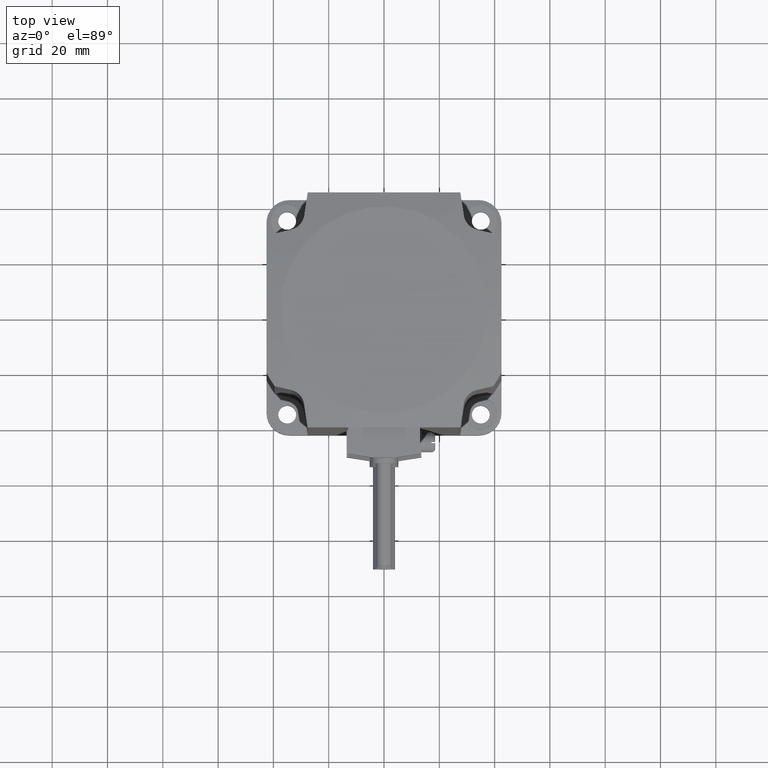
[diagram: clean part render]
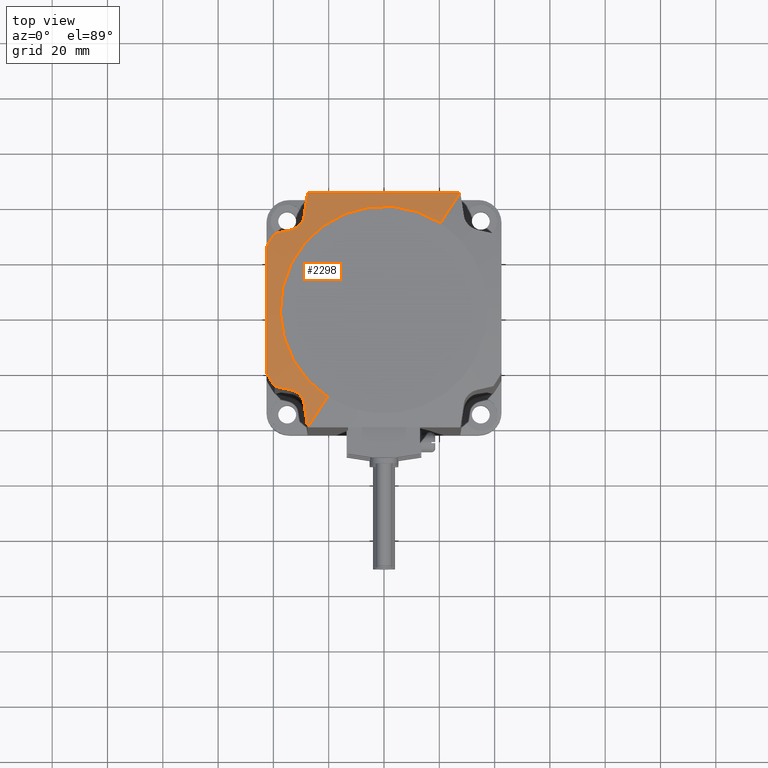
[diagram: same view with one face highlighted and labeled with its STEP entity id]
A machine part, top view. The second image highlights one B-rep face of the part: STEP entity #2298.
In plain terms, the highlighted spherical surface has radius 200 mm.
Its self-contained STEP definition (entity closure, byte-faithful):
#38 = DIRECTION ( 'NONE',  ( 0.5446414957570451243, 0.8386689699157402478, 0.0000000000000000000 ) ) ;
#41 = ORIENTED_EDGE ( 'NONE', *, *, #852, .F. ) ;
#88 = EDGE_CURVE ( 'NONE', #3593, #1196, #4919, .T. ) ;
#94 = AXIS2_PLACEMENT_3D ( 'NONE', #4737, #3061, #4338 ) ;
#100 = CIRCLE ( 'NONE', #2882, 48.20000000000000995 ) ;
#121 = CARTESIAN_POINT ( 'NONE',  ( 0.0000000000000000000, 0.0000000000000000000, 171.6521025501577071 ) ) ;
#177 = CARTESIAN_POINT ( 'NONE',  ( -30.24056762302149437, 31.01458720986288853, 172.7999902181730363 ) ) ;
#221 = CARTESIAN_POINT ( 'NONE',  ( -33.30042872042126589, -29.02947558148741791, 172.6072456029619104 ) ) ;
#222 = DIRECTION ( 'NONE',  ( -0.8386689699157401368, 0.5446414957570452353, 5.133999465932588872E-18 ) ) ;
#253 = DIRECTION ( 'NONE',  ( 0.8386689699157402478, -0.5446414957570451243, -5.133999465932588102E-18 ) ) ;
#276 = CARTESIAN_POINT ( 'NONE',  ( -20.42405609088921636, -31.45008637184029610, 174.0000000000000000 ) ) ;
#341 = EDGE_CURVE ( 'NONE', #2640, #4765, #100, .T. ) ;
#382 = ORIENTED_EDGE ( 'NONE', *, *, #3274, .F. ) ;
#450 = ORIENTED_EDGE ( 'NONE', *, *, #4017, .F. ) ;
#453 = AXIS2_PLACEMENT_3D ( 'NONE', #3295, #4099, #2851 ) ;
#574 = CARTESIAN_POINT ( 'NONE',  ( -28.86919802653621758, 34.07627538618240237, 172.4967571973375016 ) ) ;
#594 = EDGE_CURVE ( 'NONE', #2522, #2640, #768, .T. ) ;
#623 = AXIS2_PLACEMENT_3D ( 'NONE', #1310, #1730, #3033 ) ;
#661 = VERTEX_POINT ( 'NONE', #3546 ) ;
#742 = DIRECTION ( 'NONE',  ( -0.1489878409383235125, 0.9888390279780306935, 2.308819581091663183E-14 ) ) ;
#763 = AXIS2_PLACEMENT_3D ( 'NONE', #3190, #1163, #1188 ) ;
#768 = CIRCLE ( 'NONE', #1850, 196.7713875655438756 ) ;
#770 = DIRECTION ( 'NONE',  ( -0.8386689699157402478, 0.5446414957570451243, 5.133999465932588102E-18 ) ) ;
#852 = EDGE_CURVE ( 'NONE', #1340, #1148, #5157, .T. ) ;
#871 = CARTESIAN_POINT ( 'NONE',  ( -28.86919802653623179, -34.07627538618240237, 172.4967571973375016 ) ) ;
#902 = ORIENTED_EDGE ( 'NONE', *, *, #1976, .F. ) ;
#915 = CARTESIAN_POINT ( 'NONE',  ( -29.69858811958233247, 31.77042984928221614, 172.7616510106243197 ) ) ;
#955 = DIRECTION ( 'NONE',  ( 0.9742402133816068233, 0.2255127637854701106, 3.196657502756436491E-14 ) ) ;
#987 = ORIENTED_EDGE ( 'NONE', *, *, #1544, .F. ) ;
#1031 = CARTESIAN_POINT ( 'NONE',  ( -42.50000000000014211, -22.73741410099197324, 171.6521025501577071 ) ) ;
#1071 = CARTESIAN_POINT ( 'NONE',  ( -1.143430478901920092E-14, -1.739552239539048247E-14, -22.45292056877140396 ) ) ;
#1080 = CARTESIAN_POINT ( 'NONE',  ( -30.88230511692524516, -30.35458678812424438, 172.8032640715452999 ) ) ;
#1088 = DIRECTION ( 'NONE',  ( -0.2255127637854665024, -0.9742402133816076004, 0.0000000000000000000 ) ) ;
#1148 = VERTEX_POINT ( 'NONE', #2279 ) ;
#1161 = EDGE_CURVE ( 'NONE', #2610, #2207, #4827, .T. ) ;
#1163 = DIRECTION ( 'NONE',  ( 4.305726043641643178E-18, -2.796189148341395697E-18, 1.000000000000000000 ) ) ;
#1188 = DIRECTION ( 'NONE',  ( 1.000000000000000000, 0.0000000000000000000, 0.0000000000000000000 ) ) ;
#1196 = VERTEX_POINT ( 'NONE', #1857 ) ;
#1245 = DIRECTION ( 'NONE',  ( -1.000000000000000000, 0.0000000000000000000, 0.0000000000000000000 ) ) ;
#1290 = CARTESIAN_POINT ( 'NONE',  ( -30.04208798208010123, -31.26452495140711463, 172.7907664228655449 ) ) ;
#1310 = CARTESIAN_POINT ( 'NONE',  ( -1.143430478901920092E-14, 42.50000000000002132, -22.45292056877140396 ) ) ;
#1340 = VERTEX_POINT ( 'NONE', #2487 ) ;
#1397 = AXIS2_PLACEMENT_3D ( 'NONE', #4167, #2625, #1748 ) ;
#1417 = VERTEX_POINT ( 'NONE', #4248 ) ;
#1424 = CARTESIAN_POINT ( 'NONE',  ( -33.60182086453012573, -28.95971067703403889, 172.5656754473278056 ) ) ;
#1544 = EDGE_CURVE ( 'NONE', #2207, #4555, #3380, .T. ) ;
#1556 = SPHERICAL_SURFACE ( 'NONE', #5100, 200.0000000000000000 ) ;
#1577 = CARTESIAN_POINT ( 'NONE',  ( -8.071407205457717282, -34.86937655385047208, -22.45292056877140396 ) ) ;
#1684 = CARTESIAN_POINT ( 'NONE',  ( -29.54121185625407620, -32.04408928024617609, 172.7408026951315492 ) ) ;
#1690 = AXIS2_PLACEMENT_3D ( 'NONE', #3550, #4377, #742 ) ;
#1730 = DIRECTION ( 'NONE',  ( -0.0000000000000000000, 1.000000000000000000, -0.0000000000000000000 ) ) ;
#1742 = CARTESIAN_POINT ( 'NONE',  ( -1.143430478901920092E-14, -1.739552239539048247E-14, -22.45292056877140396 ) ) ;
#1748 = DIRECTION ( 'NONE',  ( 4.615698672296983376E-16, 1.000000000000000000, 4.438171800285561105E-15 ) ) ;
#1753 = CARTESIAN_POINT ( 'NONE',  ( -30.04521705179144320, 31.26031856699229650, 172.7909595438525514 ) ) ;
#1850 = AXIS2_PLACEMENT_3D ( 'NONE', #1577, #1088, #2758 ) ;
#1857 = CARTESIAN_POINT ( 'NONE',  ( -28.86919802653623179, -34.07627538618240237, 172.4967571973375016 ) ) ;
#1900 = ORIENTED_EDGE ( 'NONE', *, *, #3613, .F. ) ;
#1954 = AXIS2_PLACEMENT_3D ( 'NONE', #1742, #222, #3355 ) ;
#1976 = EDGE_CURVE ( 'NONE', #1196, #2522, #3795, .T. ) ;
#2058 = ORIENTED_EDGE ( 'NONE', *, *, #88, .F. ) ;
#2176 = CARTESIAN_POINT ( 'NONE',  ( -28.86919802653621758, 34.07627538618240237, 172.4967571973375016 ) ) ;
#2207 = VERTEX_POINT ( 'NONE', #4579 ) ;
#2218 = CARTESIAN_POINT ( 'NONE',  ( -8.071407205457875378, 34.86937655385052182, -22.45292056877140396 ) ) ;
#2279 = CARTESIAN_POINT ( 'NONE',  ( -39.52320953699879169, 27.58905413192862710, 171.6521025501577071 ) ) ;
#2298 = ADVANCED_FACE ( 'NONE', ( #3969 ), #1556, .T. ) ;
#2378 = CIRCLE ( 'NONE', #3570, 196.7713875655438471 ) ;
#2423 = CARTESIAN_POINT ( 'NONE',  ( -1.143430478901920092E-14, -1.739552239539048247E-14, -22.45292056877140396 ) ) ;
#2469 = CARTESIAN_POINT ( 'NONE',  ( -27.60000000000001563, -42.50000000000002132, 171.0205659868804560 ) ) ;
#2470 = CIRCLE ( 'NONE', #623, 195.4322133119307523 ) ;
#2477 = CARTESIAN_POINT ( 'NONE',  ( -28.96115440581031564, -33.46595674457324776, 172.5898205939516004 ) ) ;
#2487 = CARTESIAN_POINT ( 'NONE',  ( -42.50000000000012079, 22.73741410099199811, 171.6521025501577355 ) ) ;
#2496 = ORIENTED_EDGE ( 'NONE', *, *, #4373, .F. ) ;
#2522 = VERTEX_POINT ( 'NONE', #4303 ) ;
#2610 = VERTEX_POINT ( 'NONE', #3976 ) ;
#2625 = DIRECTION ( 'NONE',  ( -1.000000000000000000, 4.577627345673731666E-16, -0.0000000000000000000 ) ) ;
#2640 = VERTEX_POINT ( 'NONE', #3760 ) ;
#2671 = CARTESIAN_POINT ( 'NONE',  ( -31.61764680952328632, -29.79476306994078527, 172.7718004775844634 ) ) ;
#2721 = CARTESIAN_POINT ( 'NONE',  ( -33.00596788524397596, -29.12127026234156091, 172.6436050303224476 ) ) ;
#2757 = EDGE_CURVE ( 'NONE', #1148, #661, #2378, .T. ) ;
#2758 = DIRECTION ( 'NONE',  ( -0.9742402133816077114, 0.2255127637854665024, 1.385512115645894822E-13 ) ) ;
#2761 = EDGE_CURVE ( 'NONE', #3593, #4555, #4259, .T. ) ;
#2851 = DIRECTION ( 'NONE',  ( 0.1489878409383235403, 0.9888390279780306935, 2.486556454331189295E-14 ) ) ;
#2882 = AXIS2_PLACEMENT_3D ( 'NONE', #121, #3339, #1245 ) ;
#2935 = CARTESIAN_POINT ( 'NONE',  ( -30.65256366317698422, -30.56880982352202736, 172.8060455913228850 ) ) ;
#2948 = CARTESIAN_POINT ( 'NONE',  ( -28.91517912084283282, 33.77109678695461525, 172.5432918352819627 ) ) ;
#3016 = ORIENTED_EDGE ( 'NONE', *, *, #594, .F. ) ;
#3033 = DIRECTION ( 'NONE',  ( 5.329070518200752183E-15, 0.0000000000000000000, -1.000000000000000000 ) ) ;
#3041 = VERTEX_POINT ( 'NONE', #574 ) ;
#3061 = DIRECTION ( 'NONE',  ( -0.0000000000000000000, -0.0000000000000000000, -1.000000000000000000 ) ) ;
#3112 = CARTESIAN_POINT ( 'NONE',  ( -32.43089394695859085, -29.34886546865727297, 172.7059321950111155 ) ) ;
#3138 = ORIENTED_EDGE ( 'NONE', *, *, #2761, .T. ) ;
#3190 = CARTESIAN_POINT ( 'NONE',  ( 7.491963315936459499E-16, -4.865369118114028004E-16, 174.0000000000000000 ) ) ;
#3274 = EDGE_CURVE ( 'NONE', #1417, #2610, #2470, .T. ) ;
#3295 = CARTESIAN_POINT ( 'NONE',  ( -33.24866455386491992, 5.009558285833494828, -22.45292056877140396 ) ) ;
#3303 = CARTESIAN_POINT ( 'NONE',  ( -29.69660942951328408, -31.77374615490858289, 172.7614111912786257 ) ) ;
#3317 = CARTESIAN_POINT ( 'NONE',  ( -29.54538283461942427, 32.03659902708749030, 172.7413978321795867 ) ) ;
#3339 = DIRECTION ( 'NONE',  ( -0.0000000000000000000, -0.0000000000000000000, -1.000000000000000000 ) ) ;
#3347 = CARTESIAN_POINT ( 'NONE',  ( -29.16508327599964545, 32.88128721322837578, 172.6581129662017418 ) ) ;
#3355 = DIRECTION ( 'NONE',  ( -0.5446414957570452353, -0.8386689699157400257, 0.0000000000000000000 ) ) ;
#3365 = CARTESIAN_POINT ( 'NONE',  ( -30.66095710256629658, 30.56058355264456949, 172.8060156242019048 ) ) ;
#3380 = CIRCLE ( 'NONE', #763, 37.50000000000000711 ) ;
#3392 = CARTESIAN_POINT ( 'NONE',  ( -32.99911735836808901, 29.09922178687214611, 172.6488046165583228 ) ) ;
#3546 = CARTESIAN_POINT ( 'NONE',  ( -33.60182086453011152, 28.95971067703403179, 172.5656754473278056 ) ) ;
#3550 = CARTESIAN_POINT ( 'NONE',  ( -33.24866455386491992, -5.009558285833530356, -22.45292056877140396 ) ) ;
#3570 = AXIS2_PLACEMENT_3D ( 'NONE', #2218, #3838, #955 ) ;
#3593 = VERTEX_POINT ( 'NONE', #2469 ) ;
#3613 = EDGE_CURVE ( 'NONE', #3041, #1417, #5111, .T. ) ;
#3679 = EDGE_LOOP ( 'NONE', ( #2058, #3138, #987, #4976, #382, #1900, #450, #5085, #41, #2496, #3828, #3016, #902 ) ) ;
#3715 = CARTESIAN_POINT ( 'NONE',  ( -33.60182086453011152, 28.95971067703403179, 172.5656754473278056 ) ) ;
#3760 = CARTESIAN_POINT ( 'NONE',  ( -39.52320953699876327, -27.58905413192866973, 171.6521025501577355 ) ) ;
#3773 = CARTESIAN_POINT ( 'NONE',  ( -31.62470081191837323, 29.79006354058095951, 172.7713783929729061 ) ) ;
#3795 = B_SPLINE_CURVE_WITH_KNOTS ( 'NONE', 3,
 ( #871, #2477, #4105, #1684, #3303, #1290, #4958, #2935, #1080, #3884, #2671, #3837, #3112, #2721, #221, #1424 ),
 .UNSPECIFIED., .F., .F.,
 ( 4, 2, 2, 2, 2, 2, 2, 4 ),
 ( 2.016974705103553704E-07, 0.001846706340402547554, 0.002769958661868567214, 0.003693210983334587090, 0.004616463304800606966, 0.005539715626266618169, 0.006462967947732630239, 0.007386220269198642309 ),
 .UNSPECIFIED. ) ;
#3828 = ORIENTED_EDGE ( 'NONE', *, *, #341, .F. ) ;
#3837 = CARTESIAN_POINT ( 'NONE',  ( -32.15002115996334453, -29.48525383952048884, 172.7318410014548249 ) ) ;
#3838 = DIRECTION ( 'NONE',  ( -0.2255127637854701106, 0.9742402133816068233, -0.0000000000000000000 ) ) ;
#3884 = CARTESIAN_POINT ( 'NONE',  ( -31.36406596055474338, -29.96857289429997095, 172.7861005151479219 ) ) ;
#3969 = FACE_OUTER_BOUND ( 'NONE', #3679, .T. ) ;
#3976 = CARTESIAN_POINT ( 'NONE',  ( 27.60000000000001563, 42.50000000000002132, 171.0205659868804560 ) ) ;
#4017 = EDGE_CURVE ( 'NONE', #661, #3041, #4907, .T. ) ;
#4099 = DIRECTION ( 'NONE',  ( -0.9888390279780308045, 0.1489878409383235403, -0.0000000000000000000 ) ) ;
#4105 = CARTESIAN_POINT ( 'NONE',  ( -29.14037456951507110, -32.88153486216071286, 172.6625044096330157 ) ) ;
#4167 = CARTESIAN_POINT ( 'NONE',  ( -42.50000000000013500, 2.059393823722932234E-15, -22.45292056877140396 ) ) ;
#4171 = CARTESIAN_POINT ( 'NONE',  ( -28.98355971834867262, 33.47106462328458321, 172.5848645843036024 ) ) ;
#4248 = CARTESIAN_POINT ( 'NONE',  ( -27.60000000000000142, 42.50000000000003553, 171.0205659868804560 ) ) ;
#4259 = CIRCLE ( 'NONE', #1954, 200.0000000000000284 ) ;
#4303 = CARTESIAN_POINT ( 'NONE',  ( -33.60182086453012573, -28.95971067703403889, 172.5656754473278056 ) ) ;
#4307 = DIRECTION ( 'NONE',  ( 0.5446414957570451243, 0.8386689699157401368, 0.0000000000000000000 ) ) ;
#4320 = AXIS2_PLACEMENT_3D ( 'NONE', #1071, #253, #4307 ) ;
#4338 = DIRECTION ( 'NONE',  ( -1.000000000000000000, 0.0000000000000000000, 0.0000000000000000000 ) ) ;
#4373 = EDGE_CURVE ( 'NONE', #4765, #1340, #5042, .T. ) ;
#4377 = DIRECTION ( 'NONE',  ( -0.9888390279780308045, -0.1489878409383235403, 0.0000000000000000000 ) ) ;
#4555 = VERTEX_POINT ( 'NONE', #276 ) ;
#4579 = CARTESIAN_POINT ( 'NONE',  ( 20.42405609088927321, 31.45008637184038847, 174.0000000000000000 ) ) ;
#4602 = CARTESIAN_POINT ( 'NONE',  ( -32.42941891449978442, 29.32404695545663031, 172.7106493622505639 ) ) ;
#4628 = CARTESIAN_POINT ( 'NONE',  ( -30.88637310953146908, 30.35103542557668632, 172.8031714663143248 ) ) ;
#4737 = CARTESIAN_POINT ( 'NONE',  ( 0.0000000000000000000, 0.0000000000000000000, 171.6521025501577355 ) ) ;
#4765 = VERTEX_POINT ( 'NONE', #1031 ) ;
#4827 = CIRCLE ( 'NONE', #4320, 200.0000000000000284 ) ;
#4907 = B_SPLINE_CURVE_WITH_KNOTS ( 'NONE', 3,
 ( #3715, #3392, #4602, #3773, #4946, #4628, #3365, #177, #1753, #915, #3317, #4995, #3347, #4171, #2948, #2176 ),
 .UNSPECIFIED., .F., .F.,
 ( 4, 2, 2, 2, 2, 2, 2, 4 ),
 ( 2.042416867789492952E-07, 0.001846673388247560468, 0.002769907961527962124, 0.003693142534808364647, 0.004616377108088766737, 0.005539611681369169260, 0.006462846254649570917, 0.007386080827929973440 ),
 .UNSPECIFIED. ) ;
#4919 = CIRCLE ( 'NONE', #1690, 197.1533175758536913 ) ;
#4946 = CARTESIAN_POINT ( 'NONE',  ( -31.36721267983572758, 29.96634783733693652, 172.7859352926307110 ) ) ;
#4958 = CARTESIAN_POINT ( 'NONE',  ( -30.23316422796425229, -31.02345302991597364, 172.7997280737659480 ) ) ;
#4976 = ORIENTED_EDGE ( 'NONE', *, *, #1161, .F. ) ;
#4995 = CARTESIAN_POINT ( 'NONE',  ( -29.27887573583408809, 32.59098964280033783, 172.6897710438711329 ) ) ;
#5042 = CIRCLE ( 'NONE', #1397, 195.4322133119307523 ) ;
#5085 = ORIENTED_EDGE ( 'NONE', *, *, #2757, .F. ) ;
#5100 = AXIS2_PLACEMENT_3D ( 'NONE', #2423, #770, #38 ) ;
#5111 = CIRCLE ( 'NONE', #453, 197.1533175758536913 ) ;
#5157 = CIRCLE ( 'NONE', #94, 48.20000000000000284 ) ;